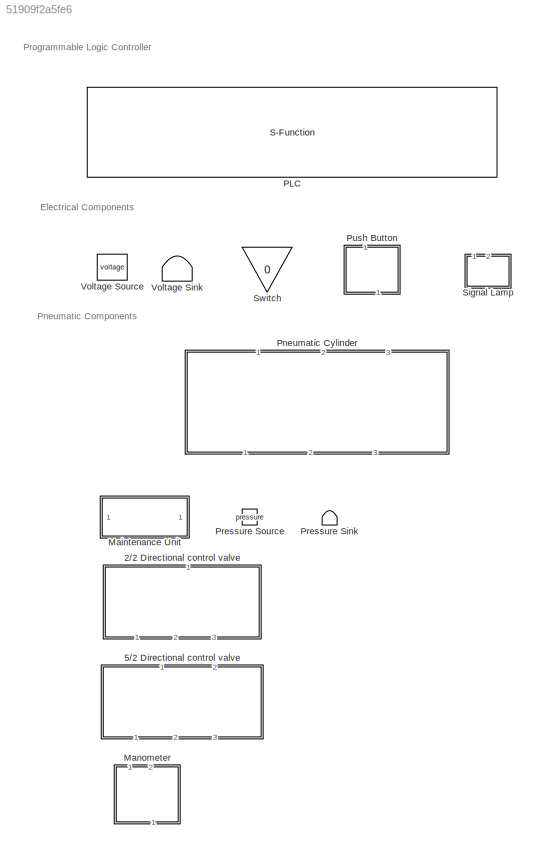
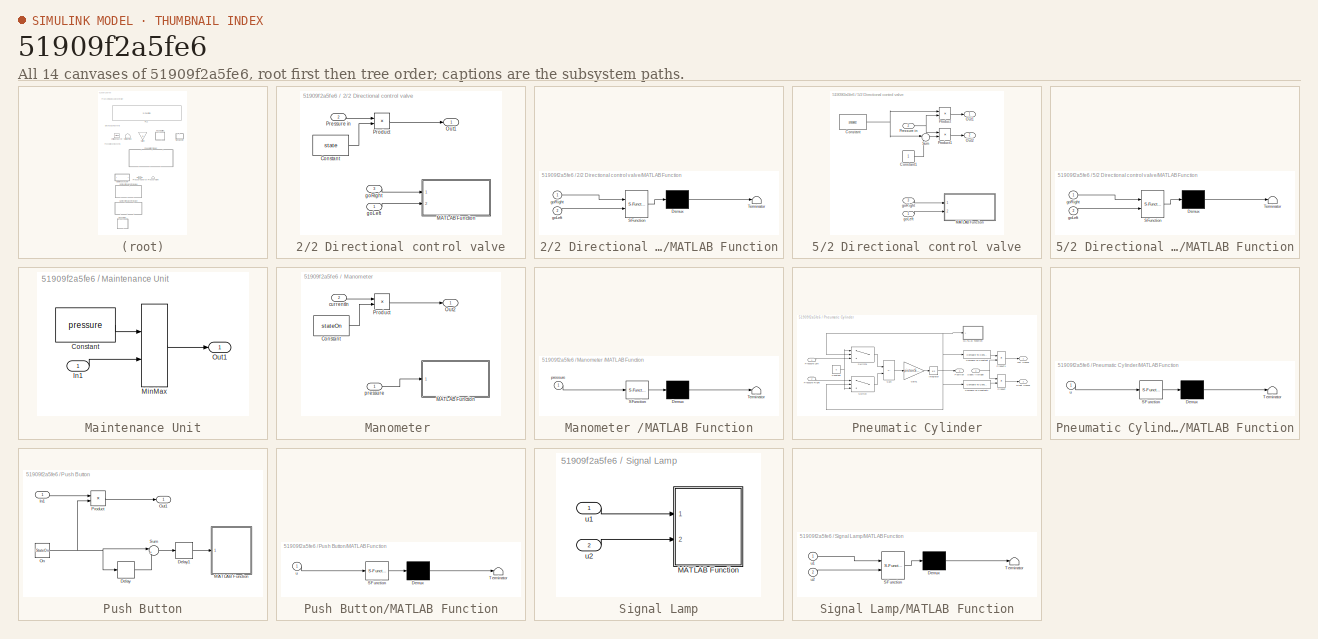
[diagram: thumbnail index - all 14 canvases of the model, root first then tree order]
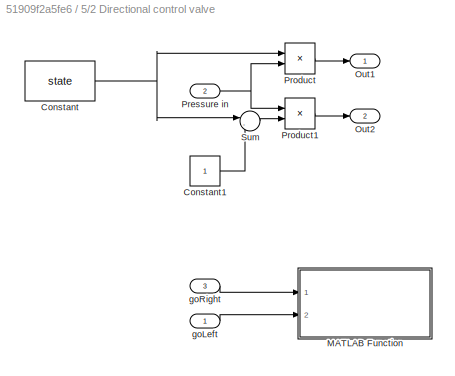
MODEL slx_51909f2a5fe6
KIND library
CONFIG AbsTol = auto
CONFIG EnableMultiTasking = off
CONFIG FixedStep = auto
CONFIG MaxStep = auto
CONFIG MinStep = auto
CONFIG RelTol = 1e-3
CONFIG SampleTimeConstraint = Unconstrained
CONFIG Solver = VariableStepAuto
CONFIG SolverName = VariableStepAuto
CONFIG StartTime = 0.0
CONFIG StopTime = 10.0
BLOCK [SubSystem] 2//2 Directional control valve
  MaskHideContents = on
  NameLocation = right
  Ports = [3, 1]
  RequestExecContextInheritance = off
BLOCK [Constant] 2//2 Directional control valve/Constant
  Value = state
BLOCK [SubSystem] 2//2 Directional control valve/MATLAB Function
  ErrorFcn = Stateflow.Translate.translate
  PermitHierarchicalResolution = ExplicitOnly
  Ports = [2]
  RequestExecContextInheritance = off
  SFBlockType = MATLAB Function
  SystemSampleTime = updateIcon
  TreatAsAtomicUnit = on
BLOCK [Demux] 2//2 Directional control valve/MATLAB Function/ Demux 
  Outputs = 1
  Ports = [1, 1]
BLOCK [S-Function] 2//2 Directional control valve/MATLAB Function/ SFunction 
  EnableBusSupport = off
  FunctionName = sf_sfun
  PortCounts = [2 1]
  Ports = [2, 1]
  SFcnIsStateOwnerBlock = off
  SFunctionDeploymentMode = off
  Tag = Stateflow S-Function 4
BLOCK [Terminator] 2//2 Directional control valve/MATLAB Function/ Terminator 
BLOCK [Inport] 2//2 Directional control valve/MATLAB Function/goLeft
  Port = 2
BLOCK [Inport] 2//2 Directional control valve/MATLAB Function/goRight
BLOCK [Outport] 2//2 Directional control valve/Out1
BLOCK [Inport] 2//2 Directional control valve/Pressure in
  Port = 2
BLOCK [Product] 2//2 Directional control valve/Product
  Ports = [2, 1]
BLOCK [Inport] 2//2 Directional control valve/goLeft
BLOCK [Inport] 2//2 Directional control valve/goRight
  Port = 3
BLOCK [SubSystem] 5//2 Directional control valve
  MaskHideContents = on
  NameLocation = right
  Ports = [3, 2]
  RequestExecContextInheritance = off
BLOCK [Constant] 5//2 Directional control valve/Constant
  Value = state
BLOCK [Constant] 5//2 Directional control valve/Constant1
BLOCK [SubSystem] 5//2 Directional control valve/MATLAB Function
  ErrorFcn = Stateflow.Translate.translate
  PermitHierarchicalResolution = ExplicitOnly
  Ports = [2]
  RequestExecContextInheritance = off
  SFBlockType = MATLAB Function
  SystemSampleTime = updateIcon
  TreatAsAtomicUnit = on
BLOCK [Demux] 5//2 Directional control valve/MATLAB Function/ Demux 
  Outputs = 1
  Ports = [1, 1]
BLOCK [S-Function] 5//2 Directional control valve/MATLAB Function/ SFunction 
  EnableBusSupport = off
  FunctionName = sf_sfun
  PortCounts = [2 1]
  Ports = [2, 1]
  SFcnIsStateOwnerBlock = off
  SFunctionDeploymentMode = off
  Tag = Stateflow S-Function 5
BLOCK [Terminator] 5//2 Directional control valve/MATLAB Function/ Terminator 
BLOCK [Inport] 5//2 Directional control valve/MATLAB Function/goLeft
  Port = 2
BLOCK [Inport] 5//2 Directional control valve/MATLAB Function/goRight
BLOCK [Outport] 5//2 Directional control valve/Out1
BLOCK [Outport] 5//2 Directional control valve/Out2
  Port = 2
BLOCK [Inport] 5//2 Directional control valve/Pressure in
  Port = 2
BLOCK [Product] 5//2 Directional control valve/Product
  Ports = [2, 1]
BLOCK [Product] 5//2 Directional control valve/Product1
  Ports = [2, 1]
BLOCK [Sum] 5//2 Directional control valve/Sum
  Inputs = |-+
  Ports = [2, 1]
BLOCK [Inport] 5//2 Directional control valve/goLeft
BLOCK [Inport] 5//2 Directional control valve/goRight
  Port = 3
BLOCK [SubSystem] Maintenance Unit
  MaskHideContents = on
  Ports = [1, 1]
  RequestExecContextInheritance = off
BLOCK [Constant] Maintenance Unit/Constant
  Value = pressure
BLOCK [Inport] Maintenance Unit/In1
BLOCK [MinMax] Maintenance Unit/MinMax
  Inputs = 2
  Ports = [2, 1]
BLOCK [Outport] Maintenance Unit/Out1
BLOCK [SubSystem] Manometer 
  MaskHideContents = on
  NameLocation = left
  Ports = [2, 1]
  RequestExecContextInheritance = off
BLOCK [Constant] Manometer /Constant
  Value = stateOn
BLOCK [SubSystem] Manometer /MATLAB Function
  ErrorFcn = Stateflow.Translate.translate
  PermitHierarchicalResolution = ExplicitOnly
  Ports = [1]
  RequestExecContextInheritance = off
  SFBlockType = MATLAB Function
  SystemSampleTime = updateIcon
  TreatAsAtomicUnit = on
BLOCK [Demux] Manometer /MATLAB Function/ Demux 
  Outputs = 1
  Ports = [1, 1]
BLOCK [S-Function] Manometer /MATLAB Function/ SFunction 
  EnableBusSupport = off
  FunctionName = sf_sfun
  PortCounts = [1 1]
  Ports = [1, 1]
  SFcnIsStateOwnerBlock = off
  SFunctionDeploymentMode = off
  Tag = Stateflow S-Function 6
BLOCK [Terminator] Manometer /MATLAB Function/ Terminator 
BLOCK [Inport] Manometer /MATLAB Function/pressure
BLOCK [Outport] Manometer /Out2
BLOCK [Product] Manometer /Product
  Ports = [2, 1]
BLOCK [Inport] Manometer /currentIn
  Port = 2
BLOCK [Inport] Manometer /pressure
BLOCK [S-Function] PLC
  EnableBusSupport = off
  FunctionName = plc2simulink
  NameLocation = left
  Parameters = instanceName, supplyVoltage,numInputs, numOutputs, timeStep,1
  Ports = [9, 9]
  SFcnIsStateOwnerBlock = off
  SFunctionDeploymentMode = off
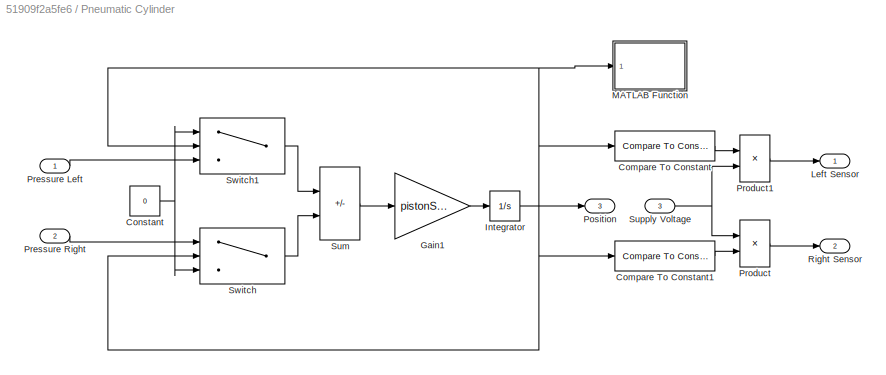
BLOCK [SubSystem] Pneumatic Cylinder
  MaskHideContents = on
  NameLocation = left
  Ports = [3, 3]
  RequestExecContextInheritance = off
BLOCK [Reference] Pneumatic Cylinder/Compare To Constant  REF=simulink/Logic and Bit
Operations/Compare
To Constant
  Ports = [1, 1]
  SourceBlock = simulink/Logic and Bit\nOperations/Compare\nTo Constant
  SourceProductBaseCode = SL
  SourceType = Compare To Constant
BLOCK [Reference] Pneumatic Cylinder/Compare To Constant1  REF=simulink/Logic and Bit
Operations/Compare
To Constant
  Ports = [1, 1]
  SourceBlock = simulink/Logic and Bit\nOperations/Compare\nTo Constant
  SourceProductBaseCode = SL
  SourceType = Compare To Constant
BLOCK [Constant] Pneumatic Cylinder/Constant
  Value = 0
BLOCK [Gain] Pneumatic Cylinder/Gain1
  Gain = pistonSpeed
BLOCK [Integrator] Pneumatic Cylinder/Integrator
  Ports = [1, 1]
BLOCK [Outport] Pneumatic Cylinder/Left Sensor
BLOCK [SubSystem] Pneumatic Cylinder/MATLAB Function
  ErrorFcn = Stateflow.Translate.translate
  PermitHierarchicalResolution = ExplicitOnly
  Ports = [1]
  RequestExecContextInheritance = off
  SFBlockType = MATLAB Function
  SystemSampleTime = updateIcon
  TreatAsAtomicUnit = on
BLOCK [Demux] Pneumatic Cylinder/MATLAB Function/ Demux 
  Outputs = 1
  Ports = [1, 1]
BLOCK [S-Function] Pneumatic Cylinder/MATLAB Function/ SFunction 
  EnableBusSupport = on
  FunctionName = sf_sfun
  PortCounts = [1 1]
  Ports = [1, 1]
  SFcnIsStateOwnerBlock = off
  SFunctionDeploymentMode = off
  Tag = Stateflow S-Function 3
BLOCK [Terminator] Pneumatic Cylinder/MATLAB Function/ Terminator 
BLOCK [Inport] Pneumatic Cylinder/MATLAB Function/u
BLOCK [Outport] Pneumatic Cylinder/Position
  Port = 3
BLOCK [Inport] Pneumatic Cylinder/Pressure Left
BLOCK [Inport] Pneumatic Cylinder/Pressure Right
  Port = 2
BLOCK [Product] Pneumatic Cylinder/Product
  Ports = [2, 1]
BLOCK [Product] Pneumatic Cylinder/Product1
  Ports = [2, 1]
BLOCK [Outport] Pneumatic Cylinder/Right Sensor
  Port = 2
BLOCK [Sum] Pneumatic Cylinder/Sum
  IconShape = rectangular
  Inputs = +-
  Ports = [2, 1]
BLOCK [Inport] Pneumatic Cylinder/Supply Voltage
  Port = 3
BLOCK [Switch] Pneumatic Cylinder/Switch
  InputSameDT = off
  SaturateOnIntegerOverflow = off
  Threshold = minPos
BLOCK [Switch] Pneumatic Cylinder/Switch1
  InputSameDT = off
  SaturateOnIntegerOverflow = off
  Threshold = maxPos
BLOCK [Terminator] Pressure Sink
BLOCK [Constant] Pressure Source
  Value = pressure
BLOCK [SubSystem] Push Button
  MaskHideContents = on
  NameLocation = left
  OpenFcn = if str2double(get_param(gcb, 'StateOn')) ==0\n  set_param(gcb, 'StateOn', '1');\nend
  Ports = [1, 1]
  RequestExecContextInheritance = off
BLOCK [Delay] Push Button/Delay
  DelayLength = 1
  InitialCondition = 0
  InputPortMap = u0
  Ports = [1, 1]
  SampleTime = deactTime
BLOCK [Delay] Push Button/Delay1
  DelayLength = 1
  InitialCondition = 0
  InputPortMap = u0
  Ports = [1, 1]
  SampleTime = deactTime
BLOCK [Inport] Push Button/In1
BLOCK [SubSystem] Push Button/MATLAB Function
  ErrorFcn = Stateflow.Translate.translate
  PermitHierarchicalResolution = ExplicitOnly
  Ports = [1]
  RequestExecContextInheritance = off
  SFBlockType = MATLAB Function
  SystemSampleTime = deactTime
  TreatAsAtomicUnit = on
BLOCK [Demux] Push Button/MATLAB Function/ Demux 
  Outputs = 1
  Ports = [1, 1]
BLOCK [S-Function] Push Button/MATLAB Function/ SFunction 
  EnableBusSupport = off
  FunctionName = sf_sfun
  PortCounts = [1 1]
  Ports = [1, 1]
  SFcnIsStateOwnerBlock = off
  SFunctionDeploymentMode = off
  Tag = Stateflow S-Function 1
BLOCK [Terminator] Push Button/MATLAB Function/ Terminator 
BLOCK [Inport] Push Button/MATLAB Function/u
BLOCK [Constant] Push Button/On
  Value = StateOn
BLOCK [Outport] Push Button/Out1
BLOCK [Product] Push Button/Product
  Ports = [2, 1]
BLOCK [Sum] Push Button/Sum
  Inputs = |+-
  Ports = [2, 1]
BLOCK [SubSystem] Signal Lamp
  MaskHideContents = on
  NameLocation = left
  PortSchema = {"entries":[{"content":{"sides":[{"content":{"connectorIds":["In1"]},"type":"ConnectorPlacement.EquallySpacedRectSide","uuid":"165e4e54-8227-4852-8b2a-a322877cca55"},{"content":{"connectorIds":["In2"],"side":"RIGHT"},"type":"ConnectorPlacement.EquallySpacedRectSide","uuid":"92cd9d56-8382-437d-8d74-4cef3f8a7755"},{"content":{"connectorIds":[],"side":"TOP"},"type":"ConnectorPlacement.EquallySpacedRe...<+241ch>
  Ports = [2]
  RequestExecContextInheritance = off
BLOCK [SubSystem] Signal Lamp/MATLAB Function
  ErrorFcn = Stateflow.Translate.translate
  PermitHierarchicalResolution = ExplicitOnly
  Ports = [2]
  RequestExecContextInheritance = off
  SFBlockType = MATLAB Function
  TreatAsAtomicUnit = on
BLOCK [Demux] Signal Lamp/MATLAB Function/ Demux 
  Outputs = 1
  Ports = [1, 1]
BLOCK [S-Function] Signal Lamp/MATLAB Function/ SFunction 
  EnableBusSupport = off
  FunctionName = sf_sfun
  PortCounts = [2 1]
  Ports = [2, 1]
  SFcnIsStateOwnerBlock = off
  SFunctionDeploymentMode = off
  Tag = Stateflow S-Function 2
BLOCK [Terminator] Signal Lamp/MATLAB Function/ Terminator 
BLOCK [Inport] Signal Lamp/MATLAB Function/u1
BLOCK [Inport] Signal Lamp/MATLAB Function/u2
  Port = 2
BLOCK [Inport] Signal Lamp/u1
BLOCK [Inport] Signal Lamp/u2
  Port = 2
BLOCK [Gain] Switch
  Gain = 0
  NameLocation = left
  OpenFcn = if str2double(get_param(gcb, 'Gain')) ~=0\n  set_param(gcb, 'Gain', '0');\nelse\n  set_param(gcb, 'Gain', '1');\nend
BLOCK [Terminator] Voltage Sink
BLOCK [Constant] Voltage Source
  Value = voltage
ANNOTATION (root): Electrical Components
ANNOTATION (root): Pneumatic Components
ANNOTATION (root): Programmable Logic Controller
LINE 2//2 Directional control valve/Constant:1 -> 2//2 Directional control valve/Product:2
LINE 2//2 Directional control valve/Pressure in:1 -> 2//2 Directional control valve/Product:1
LINE 2//2 Directional control valve/Product:1 -> 2//2 Directional control valve/Out1:1
LINE 2//2 Directional control valve/goLeft:1 -> 2//2 Directional control valve/MATLAB Function:2
LINE 2//2 Directional control valve/goRight:1 -> 2//2 Directional control valve/MATLAB Function:1
LINE 5//2 Directional control valve/Constant1:1 -> 5//2 Directional control valve/Sum:2
NET 5//2 Directional control valve/Constant:1 -> 5//2 Directional control valve/Product:1, 5//2 Directional control valve/Sum:1
NET 5//2 Directional control valve/Pressure in:1 -> 5//2 Directional control valve/Product1:1, 5//2 Directional control valve/Product:2
LINE 5//2 Directional control valve/Product1:1 -> 5//2 Directional control valve/Out2:1
LINE 5//2 Directional control valve/Product:1 -> 5//2 Directional control valve/Out1:1
LINE 5//2 Directional control valve/Sum:1 -> 5//2 Directional control valve/Product1:2
LINE 5//2 Directional control valve/goLeft:1 -> 5//2 Directional control valve/MATLAB Function:2
LINE 5//2 Directional control valve/goRight:1 -> 5//2 Directional control valve/MATLAB Function:1
LINE Maintenance Unit/Constant:1 -> Maintenance Unit/MinMax:1
LINE Maintenance Unit/In1:1 -> Maintenance Unit/MinMax:2
LINE Maintenance Unit/MinMax:1 -> Maintenance Unit/Out1:1
LINE Manometer /Constant:1 -> Manometer /Product:2
LINE Manometer /Product:1 -> Manometer /Out2:1
LINE Manometer /currentIn:1 -> Manometer /Product:1
LINE Manometer /pressure:1 -> Manometer /MATLAB Function:1
LINE Pneumatic Cylinder/Compare To Constant1:1 -> Pneumatic Cylinder/Product:2
LINE Pneumatic Cylinder/Compare To Constant:1 -> Pneumatic Cylinder/Product1:1
NET Pneumatic Cylinder/Constant:1 -> Pneumatic Cylinder/Switch1:1, Pneumatic Cylinder/Switch:3
LINE Pneumatic Cylinder/Gain1:1 -> Pneumatic Cylinder/Integrator:1
NET Pneumatic Cylinder/Integrator:1 -> Pneumatic Cylinder/Compare To Constant1:1, Pneumatic Cylinder/Compare To Constant:1, Pneumatic Cylinder/MATLAB Function:1, Pneumatic Cylinder/Position:1, Pneumatic Cylinder/Switch1:2, Pneumatic Cylinder/Switch:2
LINE Pneumatic Cylinder/Pressure Left:1 -> Pneumatic Cylinder/Switch1:3
LINE Pneumatic Cylinder/Pressure Right:1 -> Pneumatic Cylinder/Switch:1
LINE Pneumatic Cylinder/Product1:1 -> Pneumatic Cylinder/Left Sensor:1
LINE Pneumatic Cylinder/Product:1 -> Pneumatic Cylinder/Right Sensor:1
LINE Pneumatic Cylinder/Sum:1 -> Pneumatic Cylinder/Gain1:1
NET Pneumatic Cylinder/Supply Voltage:1 -> Pneumatic Cylinder/Product1:2, Pneumatic Cylinder/Product:1
LINE Pneumatic Cylinder/Switch1:1 -> Pneumatic Cylinder/Sum:1
LINE Pneumatic Cylinder/Switch:1 -> Pneumatic Cylinder/Sum:2
LINE Push Button/Delay1:1 -> Push Button/MATLAB Function:1
LINE Push Button/Delay:1 -> Push Button/Sum:2
LINE Push Button/In1:1 -> Push Button/Product:1
NET Push Button/On:1 -> Push Button/Delay:1, Push Button/Product:2, Push Button/Sum:1
LINE Push Button/Product:1 -> Push Button/Out1:1
LINE Push Button/Sum:1 -> Push Button/Delay1:1
LINE Signal Lamp/u1:1 -> Signal Lamp/MATLAB Function:1
LINE Signal Lamp/u2:1 -> Signal Lamp/MATLAB Function:2
note: NET lines group one-source signal fan-out (src -> all destinations, sorted); 1:1 wires keep LINE
CHART Signal Lamp/MATLAB Function states=1 transitions=1
  STATE_LABEL 'eML_blk_kernel()'
  STATE_LABEL "SCRIPT:\nfunction updateIcon(u1, u2) %#eml\n\neml.extrinsic('set_param');\neml.extrinsic('get_param');\neml.extrinsic('num2str');\neml.extrinsic('gcb');\n\nparent = get_param(gcb(), 'Parent');\nif u1 ~= u2\n    if ~strcmpi(get_param(parent, 'Value'), 'on')\n        set_param(parent, 'Value', 'on');\n    end\nelse\n    if ~strcmpi(get_param(parent, 'Value'), 'off')\n        set_param(parent, 'Value', 'off');\n    ...<+11ch>"
CHART Pneumatic Cylinder/MATLAB Function states=1 transitions=1
  STATE_LABEL 'eML_blk_kernel()'
  STATE_LABEL "SCRIPT:\nfunction updateIcon(u) %#eml\n\neml.extrinsic('set_param');\neml.extrinsic('get_param');\neml.extrinsic('num2str');\neml.extrinsic('str2double');\neml.extrinsic('gcb');\n\nparent = get_param(gcb(), 'Parent');\nval = num2str(u);\nif ~strcmpi(get_param(parent, 'currentPos'), val)\n    set_param(parent, 'currentPos', val);\nend\nend"
CHART 2//2 Directional control valve/MATLAB Function states=1 transitions=1
  STATE_LABEL 'eML_blk_kernel()'
  STATE_LABEL "SCRIPT:\nfunction updateIcon(goRight, goLeft) %#eml\n\neml.extrinsic('set_param');\neml.extrinsic('get_param');\neml.extrinsic('num2str');\neml.extrinsic('str2double');\neml.extrinsic('gcb');\n\nif goRight == goLeft\n    return;\nend\n\nparent = get_param(gcb(), 'Parent');\nif goRight > goLeft\n    if ~strcmpi(get_param(parent, 'state'), '0')\n        set_param(parent, 'state', '0');\n    end\nelseif goLeft > goRig...<+108ch>"
CHART 5//2 Directional control valve/MATLAB Function states=1 transitions=1
  STATE_LABEL 'eML_blk_kernel()'
  STATE_LABEL "SCRIPT:\nfunction updateIcon(goRight, goLeft) %#eml\n\neml.extrinsic('set_param');\neml.extrinsic('get_param');\neml.extrinsic('num2str');\neml.extrinsic('str2double');\neml.extrinsic('gcb');\n\nif goRight == goLeft\n    return;\nend\n\nparent = get_param(gcb(), 'Parent');\nif goRight > goLeft\n    if ~strcmpi(get_param(parent, 'state'), '0')\n        set_param(parent, 'state', '0');\n    end\nelseif goLeft > goRig...<+108ch>"
CHART Manometer /MATLAB Function states=1 transitions=1
  STATE_LABEL 'eML_blk_kernel()'
  STATE_LABEL "SCRIPT:\nfunction updateIcon(pressure) %#eml\n\neml.extrinsic('set_param');\neml.extrinsic('get_param');\neml.extrinsic('num2str');\neml.extrinsic('str2double');\neml.extrinsic('gcb');\neml.extrinsic('gt');\n\nparent = get_param(gcb(), 'Parent');\nactPressure = str2double(get_param(parent, 'actPressure'));\nif gt(pressure, actPressure)\n    if ~strcmpi(get_param(parent, 'stateOn'), '1')\n        set_param(paren...<+142ch>"
CHART Push Button/MATLAB Function states=1 transitions=1
  STATE_LABEL 'eML_blk_kernel()'
  STATE_LABEL "SCRIPT:\nfunction updateState(u) %#eml\n\neml.extrinsic('set_param');\neml.extrinsic('get_param');\neml.extrinsic('gcb');\n\nif u ~= 0\n    parent = get_param(gcb(), 'Parent');\n    set_param(parent, 'StateOn', '0');\nend\nend"
CHART  states=0 transitions=0
CHART  states=0 transitions=0
CHART  states=0 transitions=0
CHART  states=0 transitions=0
CHART  states=0 transitions=0
CHART  states=0 transitions=0
